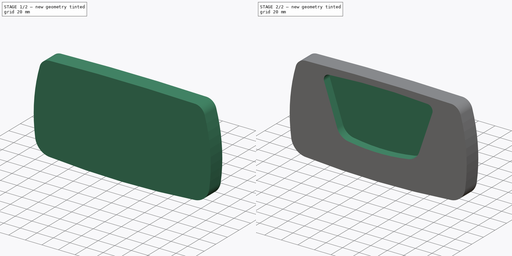
[diagram: build sequence overview — one tinted view per stage of 2, left to right]
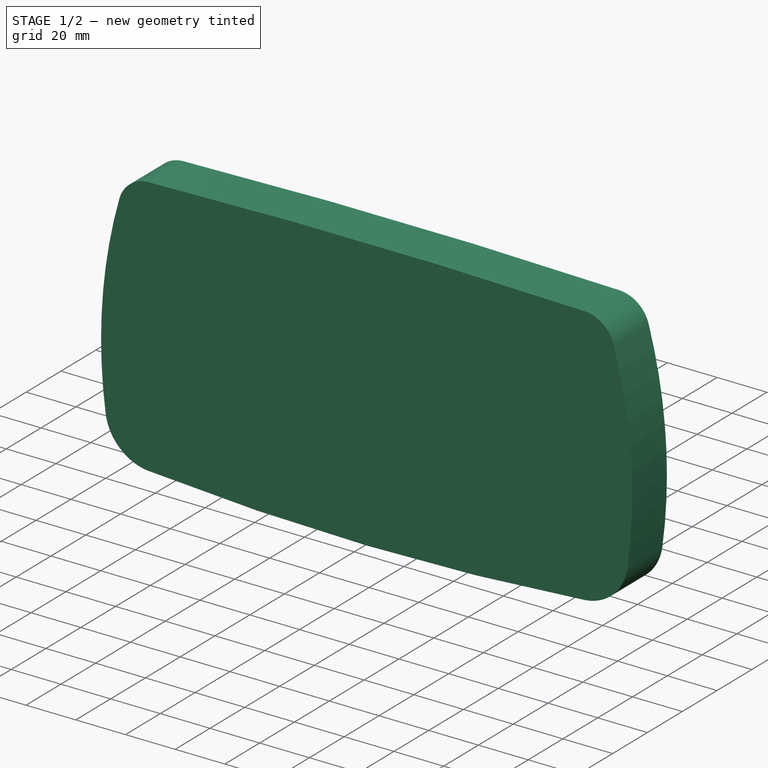
[diagram: stage 1 of 2 — iso view after this stage's code; geometry added in this stage tinted green]
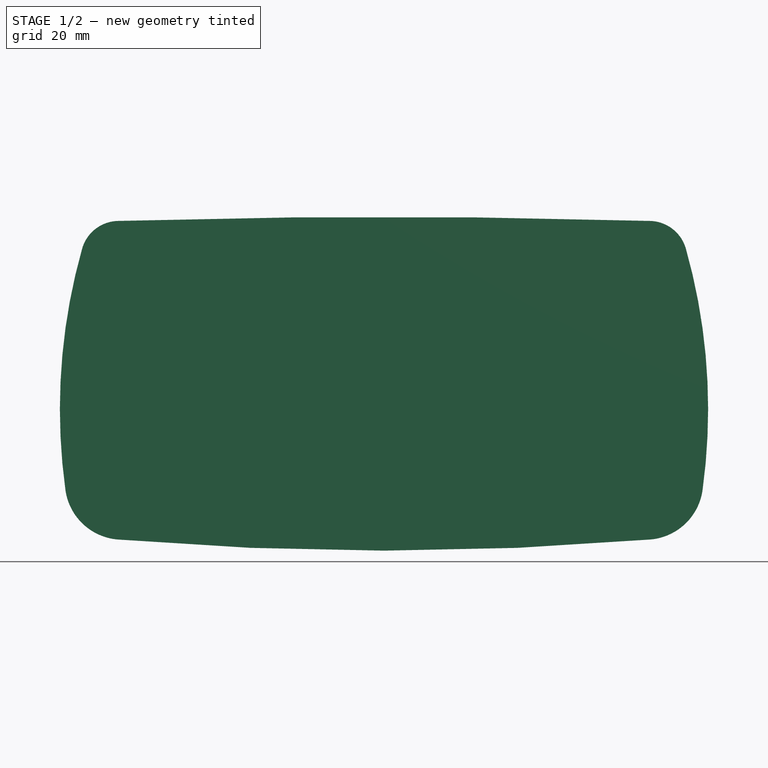
[diagram: stage 1 of 2 — front view after this stage's code; geometry added in this stage tinted green]
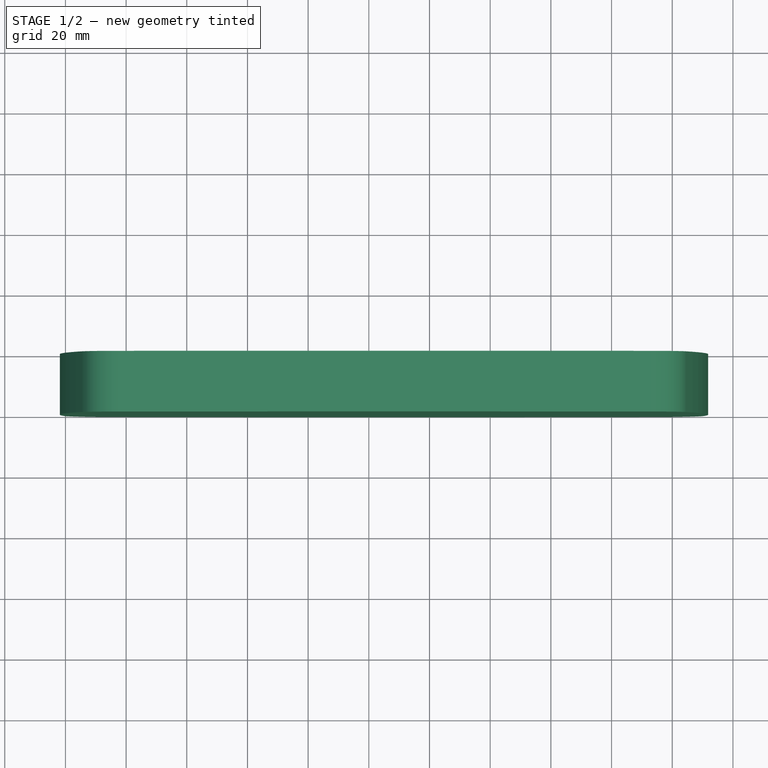
[diagram: stage 1 of 2 — top view after this stage's code; geometry added in this stage tinted green]
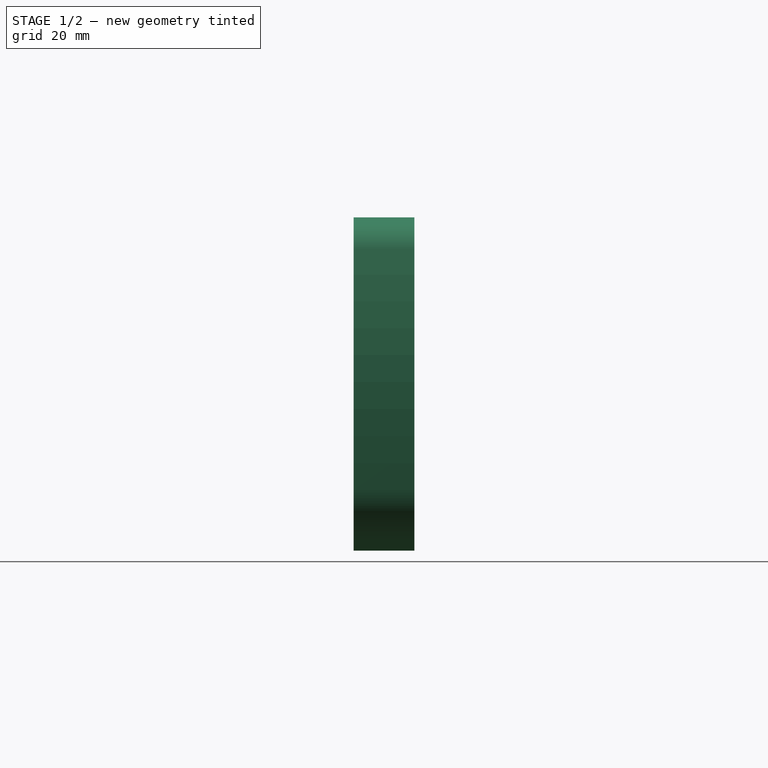
[diagram: stage 1 of 2 — right view after this stage's code; geometry added in this stage tinted green]
FCSTD DOCUMENT  (FreeCAD 0.20R29177 +426 (Git))
Label: Game Gear Icon
License: All rights reserved
LicenseURL: http://en.wikipedia.org/wiki/All_rights_reserved
objects: Sketcher::SketchObject×2, PartDesign::Pad×1, PartDesign::Pocket×1, PartDesign::Body×1
note: 7 computed .brp shape members not serialized (recipe doc carries the construction recipe); baked Part::Feature solids carry a one-line shape summary decoded from their .brp

FEATURE [Sketcher::SketchObject] Sketch
  FullyConstrained = true
  MapMode = 5
  Placement = pos=(0,0,0) rot=(1,0,0;1.5708rad)
  Support = -> [XZ_Plane]
  sketch-geometry (19):
    g0: ArcOfCircle CenterX=18.8162 CenterY=2.59746 CenterZ=0 NormalX=0 NormalY=0 NormalZ=1 AngleXU=0 Radius=18.9946 StartAngle=3.27877 EndAngle=4.62883
    g1: ArcOfCircle CenterX=105 CenterY=1031.6 CenterZ=0 NormalX=0 NormalY=0 NormalZ=1 AngleXU=0 Radius=1051.6 StartAngle=4.62883 EndAngle=4.79595
    g2: ArcOfCircle CenterX=191.184 CenterY=2.59746 CenterZ=0 NormalX=0 NormalY=0 NormalZ=1 AngleXU=0 Radius=18.9946 StartAngle=4.79595 EndAngle=6.14601
    g3: ArcOfCircle CenterX=17.6124 CenterY=76.0885 CenterZ=0 NormalX=0 NormalY=0 NormalZ=1 AngleXU=0 Radius=12.5864 StartAngle=1.60112 EndAngle=2.86629
    g4: ArcOfCircle CenterX=192.388 CenterY=76.0885 CenterZ=0 NormalX=0 NormalY=0 NormalZ=1 AngleXU=0 Radius=12.5864 StartAngle=0.275305 EndAngle=1.54047
    g5: ArcOfCircle CenterX=105 CenterY=-2804.81 CenterZ=0 NormalX=0 NormalY=0 NormalZ=1 AngleXU=0 Radius=2894.81 StartAngle=1.54047 EndAngle=1.60112
    g6: LineSegment StartX=17.2308 StartY=88.6691 StartZ=0 EndX=17.2308 EndY=-16.3309 EndZ=0
    g7: LineSegment StartX=192.769 StartY=-16.3309 StartZ=0 EndX=192.769 EndY=88.6691 EndZ=0
    g8: LineSegment StartX=0 StartY=0 StartZ=0 EndX=210 EndY=0 EndZ=0
    g9: LineSegment StartX=204.5 StartY=79.51 StartZ=0 EndX=5.5 EndY=79.51 EndZ=0
    g10: ArcOfCircle CenterX=192.769 CenterY=26.6107 CenterZ=0 NormalX=0 NormalY=0 NormalZ=1 AngleXU=0 Radius=194.597 StartAngle=2.86629 EndAngle=3.27877
    g11: ArcOfCircle CenterX=17.2308 CenterY=26.6107 CenterZ=0 NormalX=0 NormalY=0 NormalZ=1 AngleXU=0 Radius=194.597 StartAngle=6.14601 EndAngle=6.55849
    g12: LineSegment StartX=105 StartY=90 StartZ=0 EndX=105 EndY=-20 EndZ=0
    g13: LineSegment StartX=0 StartY=-20 StartZ=0 EndX=210 EndY=-20 EndZ=0
    g14: LineSegment StartX=210 StartY=-20 StartZ=0 EndX=210 EndY=0 EndZ=0
    g15: LineSegment StartX=0 StartY=0 StartZ=0 EndX=0 EndY=-20 EndZ=0
    g16: LineSegment StartX=5.5 StartY=90 StartZ=0 EndX=204.5 EndY=90 EndZ=0
    g17: LineSegment StartX=204.5 StartY=90 StartZ=0 EndX=204.5 EndY=79.51 EndZ=0
    g18: LineSegment StartX=5.5 StartY=90 StartZ=0 EndX=5.5 EndY=79.51 EndZ=0
  constraints (51):
    c: Tangent(g5,g3) = -1.5708
    c: Tangent(g5,g4) = -1.5708
    c: Coincident(g4,g9) = -1.5708
    c: Coincident(g3,g9) = -1.5708
    c: Tangent(g1,g0) = -1.5708
    c: Tangent(g2,g1) = -1.5708
    c: Equal(g3,g4)
    c: Equal(g2,g0)
    c: Coincident(g6,g3)
    c: Coincident(g6,g0)
    c: Vertical(g6)
    c: Coincident(g7,g1)
    c: Coincident(g7,g4)
    c: Vertical(g7)
    c: Coincident(g8,g0)
    c: Coincident(g8,g2)
    c: Horizontal(g8)
    c: Horizontal(g9)
    c: Distance(g6) = 105
    c: Distance(g8) = 210
    c: Distance(g9) = 199
    c: Coincident(g0,g-1)
    c: Tangent(g11,g2) = -1.5708
    c: Tangent(g11,g4) = -1.5708
    c: Tangent(g10,g0) = -1.5708
    c: Tangent(g10,g3) = -1.5708
    c: Equal(g7,g6)
    c: PointOnObject(g12,g5)
    c: PointOnObject(g12,g1)
    c: Vertical(g12)
    c: Perpendicular(g5,g12)
    c: Distance(g12) = 110
    c: PointOnObject(g13,g-2)
    c: Horizontal(g13)
    c: Coincident(g14,g13)
    c: Coincident(g14,g2)
    c: Coincident(g15,g0)
    c: Coincident(g15,g13)
    c: Vertical(g14)
    c: PointOnObject(g12,g13)
    c: Distance(g14) = 20
    c: Horizontal(g16)
    c: Coincident(g17,g16)
    c: Coincident(g17,g4)
    c: Vertical(g17)
    c: Coincident(g18,g16)
    c: Coincident(g18,g3)
    c: Vertical(g18)
    c: PointOnObject(g12,g16)
    c: Distance(g17) = 10.49
    c: PointOnObject(g10,g7)
FEATURE [PartDesign::Pad] Pad
  Direction = (0,-1,2e-16)
  Length = 20
  Length2 = 10
  Placement = pos=(0,0,0) rot=(1,0,0;1.5708rad)
  Profile = -> Sketch
  ReferenceAxis = -> Sketch [N_Axis]
  Type = 0
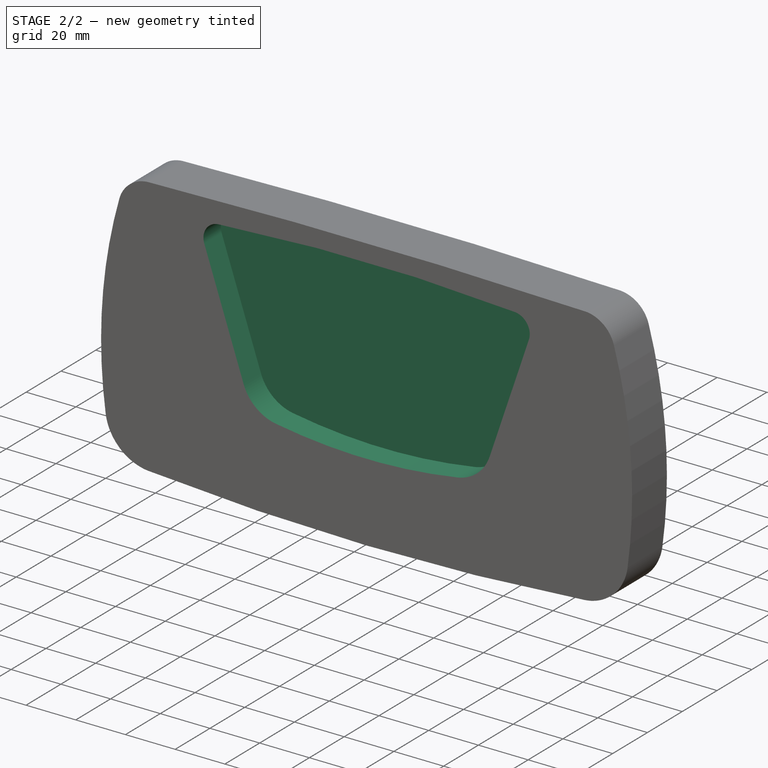
[diagram: stage 2 of 2 — iso view after this stage's code; geometry added in this stage tinted green]
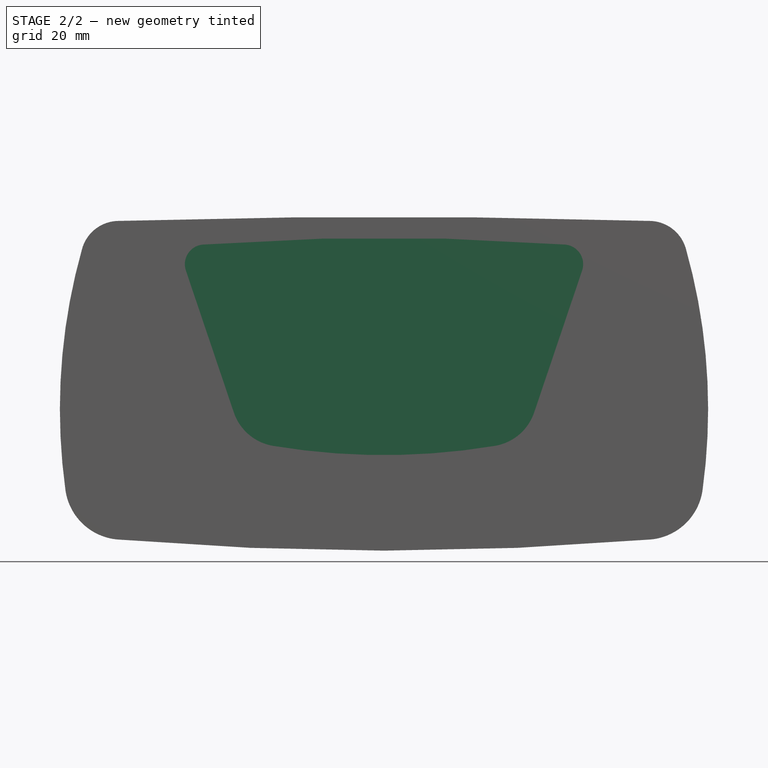
[diagram: stage 2 of 2 — front view after this stage's code; geometry added in this stage tinted green]
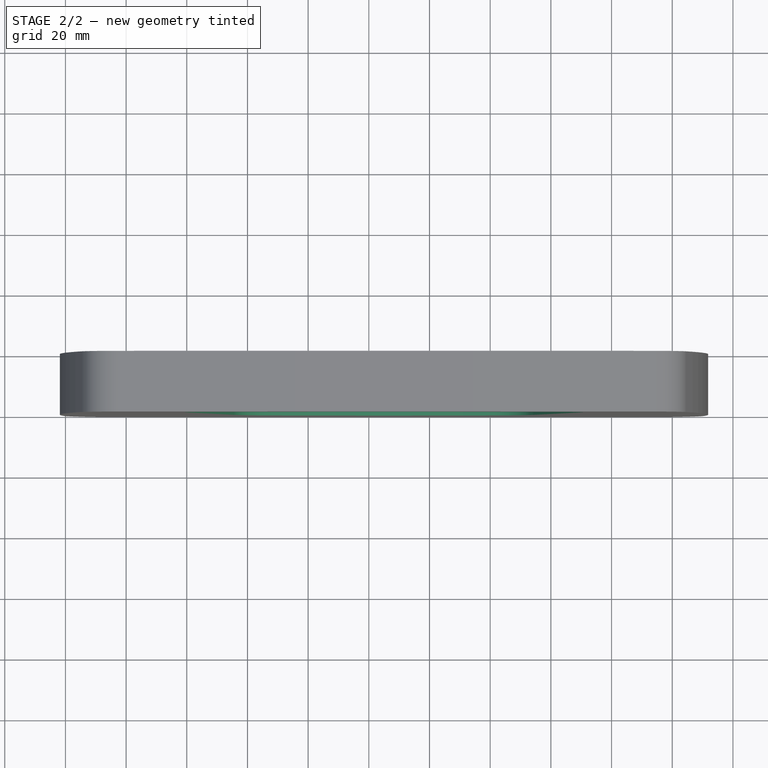
[diagram: stage 2 of 2 — top view after this stage's code; geometry added in this stage tinted green]
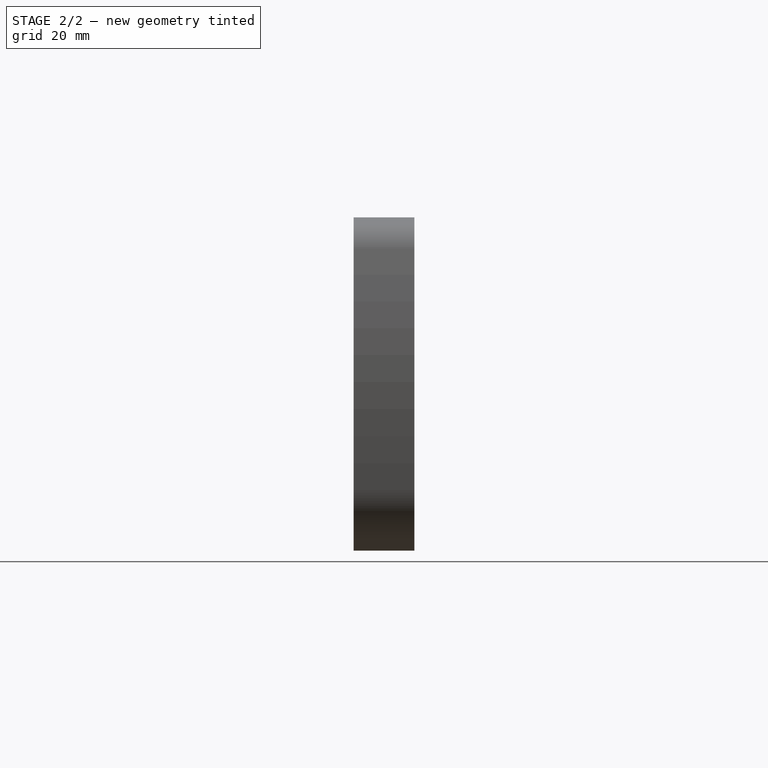
[diagram: stage 2 of 2 — right view after this stage's code; geometry added in this stage tinted green]
FEATURE [Sketcher::SketchObject] Sketch001
  ExternalGeometry = -> [Pad]
  FullyConstrained = true
  MapMode = 5
  Placement = pos=(0,-20,4.4e-15) rot=(1,0,0;1.5708rad)
  Support = -> [Pad]
  sketch-geometry (18):
    g0: ArcOfCircle CenterX=105 CenterY=-720.824 CenterZ=0 NormalX=0 NormalY=0 NormalZ=1 AngleXU=0 Radius=803.924 StartAngle=1.49656 EndAngle=1.64503
    g1: ArcOfCircle CenterX=45.8579 CenterY=74.4038 CenterZ=0 NormalX=0 NormalY=0 NormalZ=1 AngleXU=0 Radius=6.5 StartAngle=1.64503 EndAngle=3.46746
    g2: ArcOfCircle CenterX=164.142 CenterY=74.4038 CenterZ=0 NormalX=0 NormalY=0 NormalZ=1 AngleXU=0 Radius=6.5 StartAngle=5.95732 EndAngle=7.77975
    g3: LineSegment StartX=39.7 StartY=72.3229 StartZ=0 EndX=55.5 EndY=25.5657 EndZ=0
    g4: LineSegment StartX=170.3 StartY=72.3229 StartZ=0 EndX=154.5 EndY=25.5657 EndZ=0
    g5: ArcOfCircle CenterX=71.1867 CenterY=30.8664 CenterZ=0 NormalX=0 NormalY=0 NormalZ=1 AngleXU=0 Radius=16.5581 StartAngle=3.46746 EndAngle=4.54666
    g6: ArcOfCircle CenterX=138.813 CenterY=30.8664 CenterZ=0 NormalX=0 NormalY=0 NormalZ=1 AngleXU=0 Radius=16.5581 StartAngle=4.87812 EndAngle=5.95732
    g7: ArcOfCircle CenterX=105 CenterY=233.025 CenterZ=0 NormalX=0 NormalY=0 NormalZ=1 AngleXU=0 Radius=221.525 StartAngle=4.54666 EndAngle=4.87812
    g8: LineSegment StartX=45.3758 StartY=80.8859 StartZ=0 EndX=45.3758 EndY=89.3859 EndZ=0
    g9: LineSegment StartX=164.624 StartY=80.8859 StartZ=0 EndX=164.624 EndY=89.3859 EndZ=0
    g10: LineSegment StartX=105 StartY=83.1 StartZ=0 EndX=105 EndY=90 EndZ=0
    g11: LineSegment StartX=105 StartY=11.5 StartZ=0 EndX=105 EndY=-20 EndZ=0
    g12: LineSegment StartX=68.4551 StartY=14.5352 StartZ=0 EndX=68.4551 EndY=-19.3648 EndZ=0
    g13: LineSegment StartX=141.545 StartY=14.5352 StartZ=0 EndX=141.545 EndY=-19.3648 EndZ=0
    g14: LineSegment StartX=55.5 StartY=25.5657 StartZ=0 EndX=55.5 EndY=-18.8343 EndZ=0
    g15: LineSegment StartX=154.5 StartY=25.5657 StartZ=0 EndX=154.5 EndY=-18.8343 EndZ=0
    g16: LineSegment StartX=55.5 StartY=25.5657 StartZ=0 EndX=154.5 EndY=25.5657 EndZ=0
    g17: LineSegment StartX=39.7 StartY=72.3229 StartZ=0 EndX=170.3 EndY=72.3229 EndZ=0
  constraints (52):
    c: Tangent(g7,g5) = -1.5708
    c: Tangent(g5,g3) = -1.5708
    c: Tangent(g3,g1) = -1.5708
    c: Tangent(g1,g0) = -1.5708
    c: Tangent(g2,g0) = -1.5708
    c: Tangent(g4,g2) = 1.5708
    c: Tangent(g6,g4) = 1.5708
    c: Tangent(g7,g6) = -1.5708
    c: Coincident(g8,g0)
    c: PointOnObject(g8,g-3)
    c: Vertical(g8)
    c: Coincident(g9,g0)
    c: PointOnObject(g9,g-3)
    c: Vertical(g9)
    c: PointOnObject(g10,g0)
    c: PointOnObject(g10,g-3)
    c: Vertical(g10)
    c: Perpendicular(g0,g10)
    c: Perpendicular(g-3,g10)
    c: Distance(g10) = 6.9
    c: PointOnObject(g11,g7)
    c: PointOnObject(g11,g-4)
    c: Vertical(g11)
    c: Perpendicular(g-4,g11)
    c: Perpendicular(g7,g11)
    c: Distance(g11) = 31.5
    c: Coincident(g12,g5)
    c: PointOnObject(g12,g-4)
    c: Vertical(g12)
    c: Coincident(g13,g6)
    c: PointOnObject(g13,g-4)
    c: Vertical(g13)
    c: Distance(g13) = 33.9
    c: Equal(g13,g12)
    c: Coincident(g14,g3)
    c: PointOnObject(g14,g-4)
    c: Vertical(g14)
    c: Coincident(g15,g4)
    c: PointOnObject(g15,g-4)
    c: Vertical(g15)
    c: Distance(g15) = 44.4
    c: Equal(g15,g14)
    c: Coincident(g16,g3)
    c: Coincident(g16,g4)
    c: Horizontal(g16)
    c: Distance(g16) = 99
    c: Coincident(g17,g1)
    c: Coincident(g17,g2)
    c: Horizontal(g17)
    c: Distance(g17) = 130.6
    c: Diameter(g2) = 13
    c: Distance(g9) = 8.5
FEATURE [PartDesign::Pocket] Pocket
  BaseFeature = -> Pad
  Direction = (0,1,-2e-16)
  Length = 10
  Length2 = 5
  Placement = pos=(0,0,0) rot=(1,0,0;1.5708rad)
  Profile = -> Sketch001
  ReferenceAxis = -> Sketch001 [N_Axis]
  Type = 0
FEATURE [PartDesign::Body] Body
  Group = -> [Sketch,Pad,Sketch001,Pocket]
  Origin = -> Origin
  Tip = -> Pocket
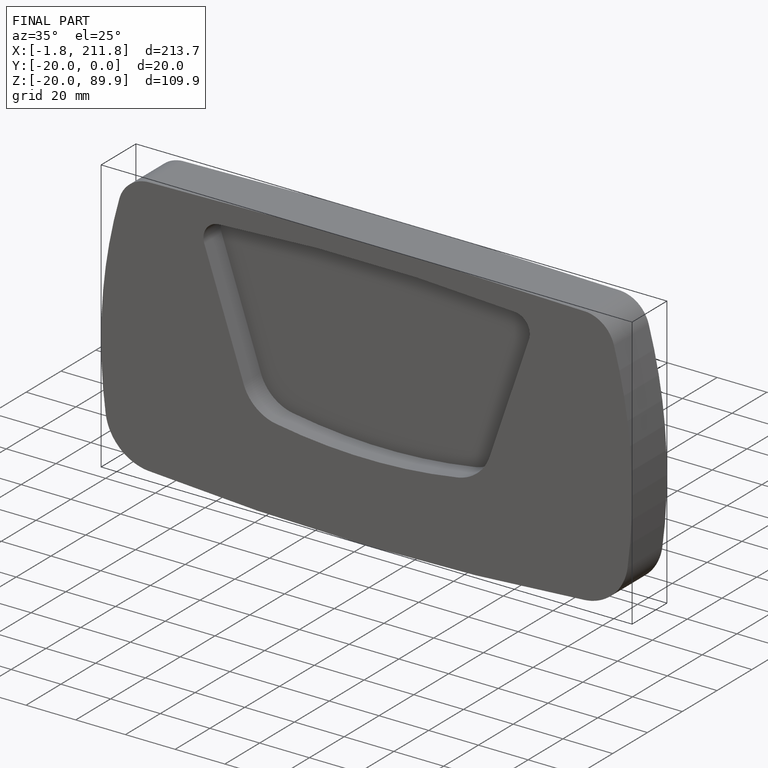
[diagram: finished part — iso view with bounding-box wireframe]
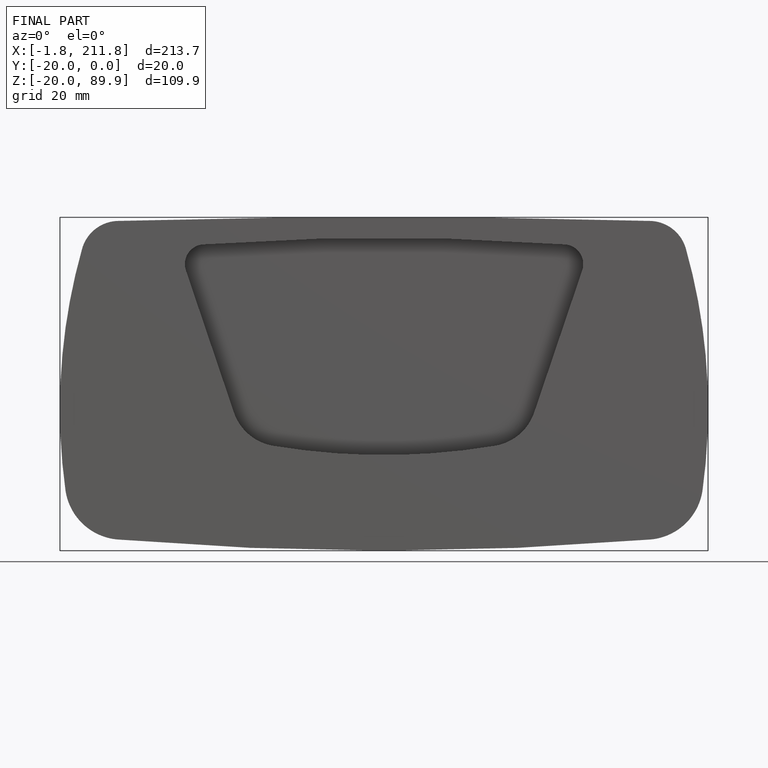
[diagram: finished part — front view with bounding-box wireframe]
